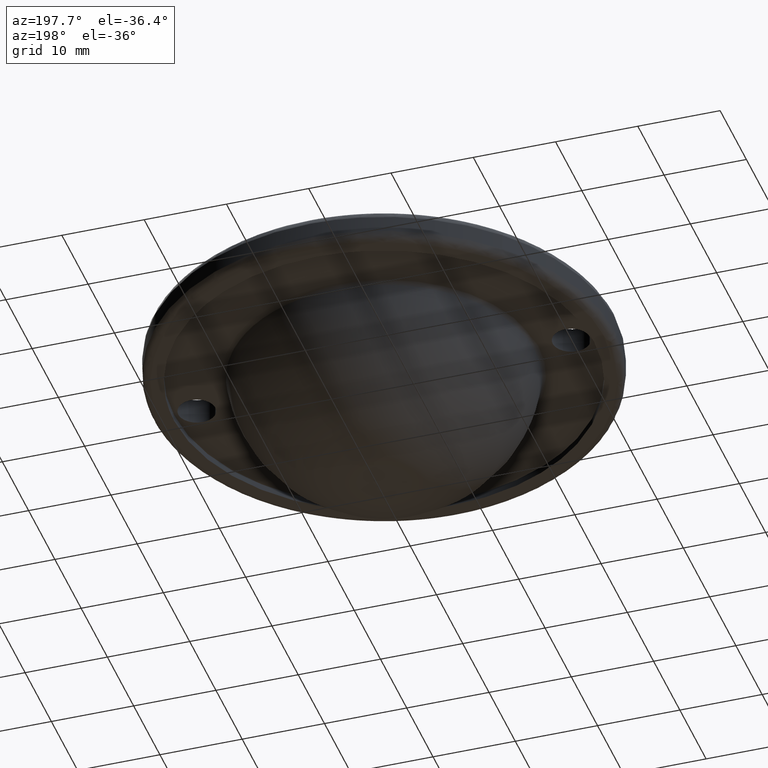
[diagram: clean part render]
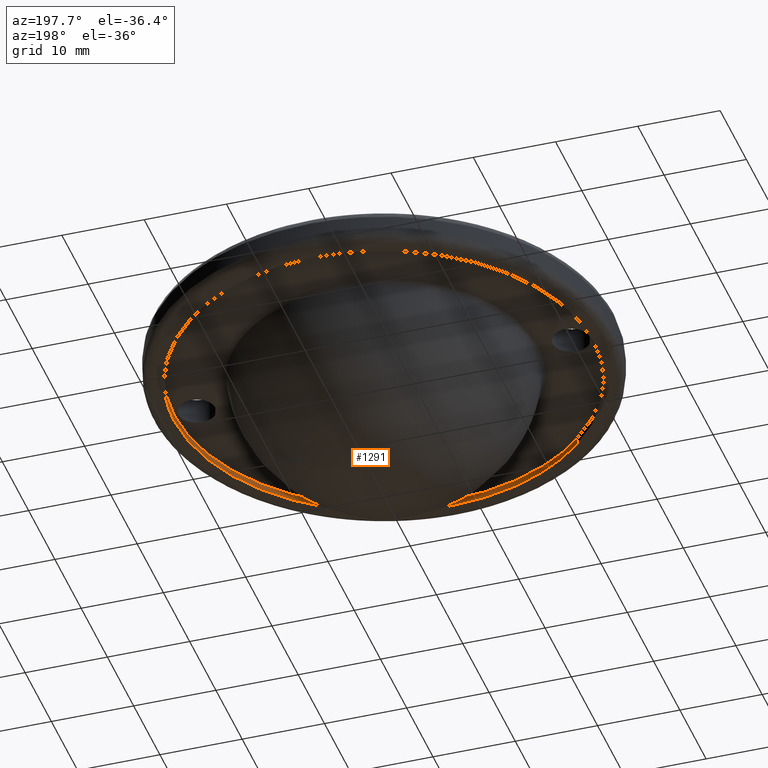
[diagram: same view with one face highlighted and labeled with its STEP entity id]
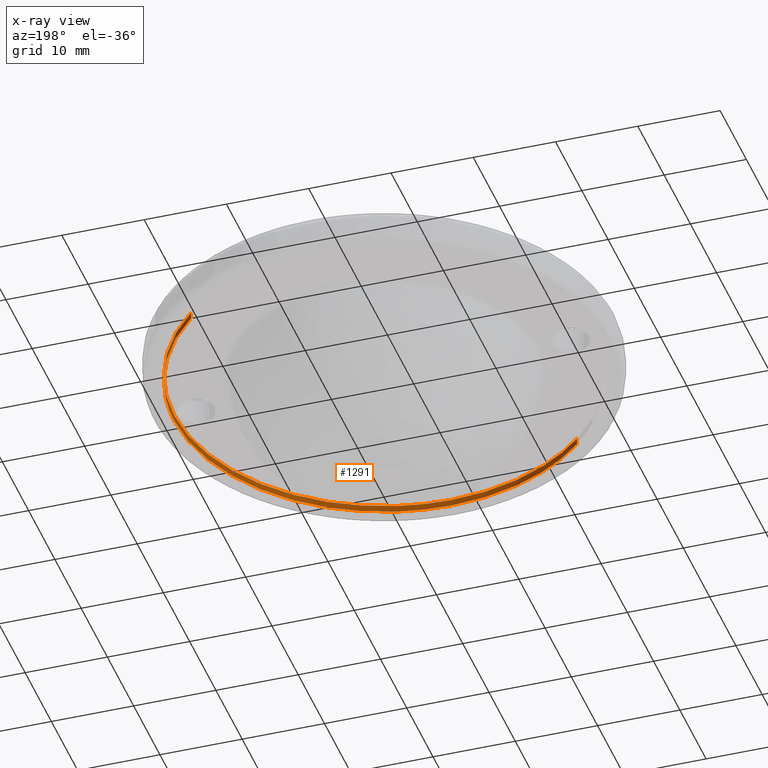
[diagram: x-ray of the same camera — body ghosted, the highlighted face saturated]
A machine part, auxiliary view. The second image highlights one B-rep face of the part: STEP entity #1291.
The next image is the same camera in x-ray: the body ghosted, the highlighted face saturated — about 33% of this face is hidden behind the body in this view.
In plain terms, the highlighted face is a freeform B-spline surface patch.
Its self-contained STEP definition (entity closure, byte-faithful):
#1160=CARTESIAN_POINT('',(17.553041680190720,18.497046460813330,0.820000000000000));
#1161=CARTESIAN_POINT('',(36.050088141004039,0.944004780622606,0.820000000000000));
#1162=CARTESIAN_POINT('',(18.497046460813330,-17.553041680190720,0.820000000000000));
#1163=CARTESIAN_POINT('',(0.944004780622606,-36.050088141004039,0.820000000000000));
#1164=CARTESIAN_POINT('',(-17.553041680190720,-18.497046460813330,0.820000000000000));
#1165=CARTESIAN_POINT('',(17.553041680190720,18.497046460813330,-0.020500000000000));
#1166=CARTESIAN_POINT('',(36.050088141004039,0.944004780622606,-0.020500000000000));
#1167=CARTESIAN_POINT('',(18.497046460813330,-17.553041680190720,-0.020500000000000));
#1168=CARTESIAN_POINT('',(0.944004780622606,-36.050088141004039,-0.020500000000000));
#1169=CARTESIAN_POINT('',(-17.553041680190720,-18.497046460813330,-0.020500000000000));
#1177=(BOUNDED_SURFACE()B_SPLINE_SURFACE(2,1,((#1160,#1165),(#1161,#1166),(#1162,#1167),(#1163,#1168),(#1164,#1169)),.UNSPECIFIED.,.F.,.F.,.U.)B_SPLINE_SURFACE_WITH_KNOTS((3,2,3),(2,2),(0.0,42.249783362055673,84.499566724111347),(0.0,1.0),.UNSPECIFIED.)GEOMETRIC_REPRESENTATION_ITEM()RATIONAL_B_SPLINE_SURFACE(((1.0,1.0),(0.707106781186548,0.707106781186548),(1.0,1.0),(0.707106781186548,0.707106781186548),(1.0,1.0)))REPRESENTATION_ITEM('')SURFACE());
#1178=CARTESIAN_POINT('',(17.553041698113251,18.497046443805498,2.126771E-015));
#1179=VERTEX_POINT('',#1178);
#1180=CARTESIAN_POINT('',(25.500000000000000,0.0,0.0));
#1181=VERTEX_POINT('',#1180);
#1182=CARTESIAN_POINT('',(17.553041698113251,18.497046443805498,2.126771E-015));
#1183=CARTESIAN_POINT('',(18.334927496770629,17.755107887455448,2.041464E-015));
#1184=CARTESIAN_POINT('',(19.657453360560918,16.330195076501379,1.877629E-015));
#1185=CARTESIAN_POINT('',(21.191918973749701,14.243393146633320,1.637690E-015));
#1186=CARTESIAN_POINT('',(22.506634926485010,12.076148295569061,1.388503E-015));
#1187=CARTESIAN_POINT('',(23.813677558525260,9.349717249123174,1.075021E-015));
#1188=CARTESIAN_POINT('',(24.861011287653920,6.051981310631668,6.958505E-016));
#1189=CARTESIAN_POINT('',(25.401502469892922,2.802476522266235,3.222258E-016));
#1190=CARTESIAN_POINT('',(25.500011374669189,0.862299361599593,9.914628E-017));
#1191=CARTESIAN_POINT('',(25.500000000000000,0.0,0.0));
#1192=B_SPLINE_CURVE_WITH_KNOTS('',3,(#1182,#1183,#1184,#1185,#1186,#1187,#1188,#1189,#1190,#1191),.UNSPECIFIED.,.F.,.U.,(4,1,1,1,1,1,1,4),(5.738858E-009,3.233632604856993,5.820546558186841,7.760735602395398,10.832670924653479,14.874729365841301,18.108373397851501,20.695276245997579),.UNSPECIFIED.);
#1193=EDGE_CURVE('',#1179,#1181,#1192,.T.);
#1194=ORIENTED_EDGE('',*,*,#1193,.T.);
#1195=CARTESIAN_POINT('',(0.0,-25.500000000000000,0.0));
#1196=VERTEX_POINT('',#1195);
#1197=CARTESIAN_POINT('',(25.500000000000000,0.0,0.0));
#1198=CARTESIAN_POINT('',(25.500223523567598,-1.668986468838265,0.0));
#1199=CARTESIAN_POINT('',(25.248153710561532,-4.224498482654250,0.0));
#1200=CARTESIAN_POINT('',(24.259085536088541,-8.122432615555288,0.0));
#1201=CARTESIAN_POINT('',(23.094714599704339,-10.983050097096060,0.0));
#1202=CARTESIAN_POINT('',(21.499298342632059,-13.799161278627400,0.0));
#1203=CARTESIAN_POINT('',(20.042529625869079,-15.840913986193110,0.0));
#1204=CARTESIAN_POINT('',(18.278901640334830,-17.835359460190499,0.0));
#1205=CARTESIAN_POINT('',(15.989727718479900,-19.975247109612660,0.0));
#1206=CARTESIAN_POINT('',(13.415577720766141,-21.776342532347119,0.0));
#1207=CARTESIAN_POINT('',(10.357217601918309,-23.363047689081800,0.0));
#1208=CARTESIAN_POINT('',(7.671061320177631,-24.389764279148679,0.0));
#1209=CARTESIAN_POINT('',(4.068050241912045,-25.268803695686390,0.0));
#1210=CARTESIAN_POINT('',(1.564670939380605,-25.500182427760699,0.0));
#1211=CARTESIAN_POINT('',(0.0,-25.500000000000000,0.0));
#1212=B_SPLINE_CURVE_WITH_KNOTS('',3,(#1197,#1198,#1199,#1200,#1201,#1202,#1203,#1204,#1205,#1206,#1207,#1208,#1209,#1210,#1211),.UNSPECIFIED.,.F.,.U.,(4,1,1,1,1,1,1,1,1,1,1,1,4),(0.000000018648457,5.006905573618951,7.666848153021860,12.047907606617221,14.238440174383211,17.367765869526821,19.558312728448779,22.218194517785079,26.755729530791520,28.946262586156472,32.544991770590023,35.361397545291929,40.055369168419062),.UNSPECIFIED.);
#1213=EDGE_CURVE('',#1181,#1196,#1212,.T.);
#1214=ORIENTED_EDGE('',*,*,#1213,.T.);
#1215=CARTESIAN_POINT('',(-17.553041698113251,-18.497046443805491,2.126771E-015));
#1216=VERTEX_POINT('',#1215);
#1217=CARTESIAN_POINT('',(0.0,-25.500000000000000,0.0));
#1218=CARTESIAN_POINT('',(-1.109170530184093,-25.500039908030629,1.343899E-016));
#1219=CARTESIAN_POINT('',(-3.327504491417529,-25.355040550024619,4.031689E-016));
#1220=CARTESIAN_POINT('',(-6.747120974121245,-24.677078046322730,8.174983E-016));
#1221=CARTESIAN_POINT('',(-9.707181185149915,-23.646180234718919,1.176147E-015));
#1222=CARTESIAN_POINT('',(-12.519496906663759,-22.274616603016419,1.516894E-015));
#1223=CARTESIAN_POINT('',(-15.039576839463050,-20.682407994810429,1.822233E-015));
#1224=CARTESIAN_POINT('',(-16.748503145307911,-19.260575580925039,2.029291E-015));
#1225=CARTESIAN_POINT('',(-17.553041698113251,-18.497046443805491,2.126771E-015));
#1226=B_SPLINE_CURVE_WITH_KNOTS('',3,(#1217,#1218,#1219,#1220,#1221,#1222,#1223,#1224,#1225),.UNSPECIFIED.,.F.,.U.,(4,1,1,1,1,1,4),(6.769252E-009,3.327512503052745,6.655037732572319,10.436293255468209,12.705055406054541,16.032580635573460,19.360093131855610),.UNSPECIFIED.);
#1227=EDGE_CURVE('',#1196,#1216,#1226,.T.);
#1228=ORIENTED_EDGE('',*,*,#1227,.T.);
#1229=CARTESIAN_POINT('',(-17.553041697892109,-18.497046444015339,0.800000000000000));
#1230=VERTEX_POINT('',#1229);
#1231=CARTESIAN_POINT('',(-17.553041697892109,-18.497046444015339,0.800000000000000));
#1232=CARTESIAN_POINT('',(-17.553041698113251,-18.497046443805491,2.126771E-015));
#1233=QUASI_UNIFORM_CURVE('',1,(#1231,#1232),.UNSPECIFIED.,.F.,.U.);
#1234=EDGE_CURVE('',#1230,#1216,#1233,.T.);
#1235=ORIENTED_EDGE('',*,*,#1234,.F.);
#1236=CARTESIAN_POINT('',(0.0,-25.500000000000000,0.800000000000000));
#1237=VERTEX_POINT('',#1236);
#1238=CARTESIAN_POINT('',(0.0,-25.500000000000000,0.800000000000000));
#1239=CARTESIAN_POINT('',(-1.008333782979326,-25.500016521304339,0.800000000000000));
#1240=CARTESIAN_POINT('',(-3.226682096811034,-25.368295187517941,0.800000000000001));
#1241=CARTESIAN_POINT('',(-6.155252234103520,-24.805658665063710,0.799999999999999));
#1242=CARTESIAN_POINT('',(-9.043085037416299,-23.895003310800700,0.799999999999999));
#1243=CARTESIAN_POINT('',(-11.496070808100100,-22.822327871261749,0.800000000000003));
#1244=CARTESIAN_POINT('',(-14.510321046088830,-21.076773840516449,0.799999999999993));
#1245=CARTESIAN_POINT('',(-16.419431310242938,-19.573007073122142,0.800000000000003));
#1246=CARTESIAN_POINT('',(-17.553041697892109,-18.497046444015339,0.800000000000000));
#1247=B_SPLINE_CURVE_WITH_KNOTS('',3,(#1238,#1239,#1240,#1241,#1242,#1243,#1244,#1245,#1246),.UNSPECIFIED.,.F.,.U.,(4,1,1,1,1,1,4),(6.781107E-009,3.025008843472303,6.655037732473142,8.923799883022166,12.100051986393890,14.671321068708760,19.360093131550752),.UNSPECIFIED.);
#1248=EDGE_CURVE('',#1237,#1230,#1247,.T.);
#1249=ORIENTED_EDGE('',*,*,#1248,.F.);
#1250=CARTESIAN_POINT('',(25.500000000000000,0.0,0.800000000000000));
#1251=VERTEX_POINT('',#1250);
#1252=CARTESIAN_POINT('',(25.500000000000000,0.0,0.800000000000000));
#1253=CARTESIAN_POINT('',(25.500223245472320,-1.668985150848466,0.799999999999999));
#1254=CARTESIAN_POINT('',(25.222456397559860,-4.485275792410672,0.800000000000001));
#1255=CARTESIAN_POINT('',(24.186344241678739,-8.320645172071503,0.800000000000000));
#1256=CARTESIAN_POINT('',(22.907397486231329,-11.355448409730849,0.800000000000000));
#1257=CARTESIAN_POINT('',(21.415781172342641,-13.932861475168419,0.799999999999999));
#1258=CARTESIAN_POINT('',(19.904188869869358,-15.997333386413990,0.800000000000001));
#1259=CARTESIAN_POINT('',(18.278904255120899,-17.835361539374979,0.800000000000005));
#1260=CARTESIAN_POINT('',(15.989726626656170,-19.975245910982011,0.799999999999992));
#1261=CARTESIAN_POINT('',(13.415578230853161,-21.776343119526999,0.800000000000010));
#1262=CARTESIAN_POINT('',(10.357217519602941,-23.363047597262369,0.800000000000011));
#1263=CARTESIAN_POINT('',(7.671061322983018,-24.389764280628640,0.799999999999985));
#1264=CARTESIAN_POINT('',(4.068050240661990,-25.268803695029749,0.800000000000000));
#1265=CARTESIAN_POINT('',(1.564670939761666,-25.500182427959860,0.800000000000019));
#1266=CARTESIAN_POINT('',(0.0,-25.500000000000000,0.800000000000000));
#1267=B_SPLINE_CURVE_WITH_KNOTS('',3,(#1252,#1253,#1254,#1255,#1256,#1257,#1258,#1259,#1260,#1261,#1262,#1263,#1264,#1265,#1266),.UNSPECIFIED.,.F.,.U.,(4,1,1,1,1,1,1,1,1,1,1,1,4),(0.000000018648457,5.006905573618951,8.449175871096760,11.891438338432391,14.864309819302040,17.367765869526821,19.558312728448779,22.218194517785079,26.755729530791520,28.946262586156472,32.544991770590023,35.361397545291929,40.055369168419062),.UNSPECIFIED.);
#1268=EDGE_CURVE('',#1251,#1237,#1267,.T.);
#1269=ORIENTED_EDGE('',*,*,#1268,.F.);
#1270=CARTESIAN_POINT('',(17.553041697892109,18.497046444015339,0.800000000000000));
#1271=VERTEX_POINT('',#1270);
#1272=CARTESIAN_POINT('',(17.553041697892109,18.497046444015339,0.800000000000000));
#1273=CARTESIAN_POINT('',(18.804200139481448,17.310062476631181,0.800000000000003));
#1274=CARTESIAN_POINT('',(20.569723642739181,15.255991918682710,0.799999999999996));
#1275=CARTESIAN_POINT('',(22.295312836147399,12.451435773107120,0.800000000000003));
#1276=CARTESIAN_POINT('',(23.443735265309009,10.131667679895230,0.799999999999997));
#1277=CARTESIAN_POINT('',(24.464112449372770,7.458212824191201,0.800000000000005));
#1278=CARTESIAN_POINT('',(25.294480646511570,3.934228209934377,0.799999999999998));
#1279=CARTESIAN_POINT('',(25.500095216267290,1.347351425326946,0.799999999999999));
#1280=CARTESIAN_POINT('',(25.500000000000000,0.0,0.800000000000000));
#1281=B_SPLINE_CURVE_WITH_KNOTS('',3,(#1272,#1273,#1274,#1275,#1276,#1277,#1278,#1279,#1280),.UNSPECIFIED.,.F.,.U.,(4,1,1,1,1,1,4),(5.745765E-009,5.173819122710553,8.084101514956029,9.862605185455845,12.934540974626801,16.653232999858890,20.695276246302392),.UNSPECIFIED.);
#1282=EDGE_CURVE('',#1271,#1251,#1281,.T.);
#1283=ORIENTED_EDGE('',*,*,#1282,.F.);
#1284=CARTESIAN_POINT('',(17.553041697892109,18.497046444015339,0.800000000000000));
#1285=CARTESIAN_POINT('',(17.553041698113251,18.497046443805498,2.126771E-015));
#1286=QUASI_UNIFORM_CURVE('',1,(#1284,#1285),.UNSPECIFIED.,.F.,.U.);
#1287=EDGE_CURVE('',#1271,#1179,#1286,.T.);
#1288=ORIENTED_EDGE('',*,*,#1287,.T.);
#1289=EDGE_LOOP('',(#1194,#1214,#1228,#1235,#1249,#1269,#1283,#1288));
#1290=FACE_OUTER_BOUND('',#1289,.T.);
#1291=ADVANCED_FACE('',(#1290),#1177,.F.);